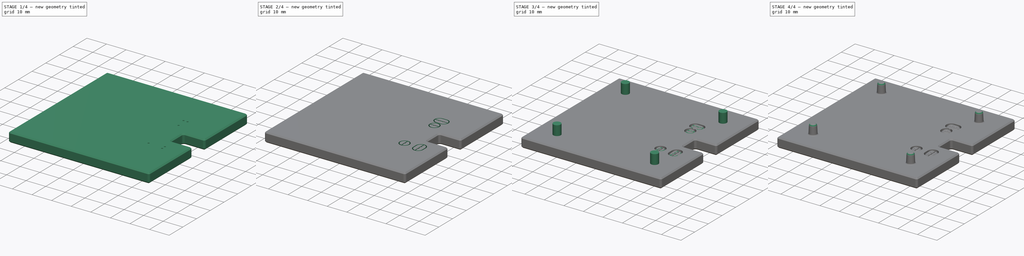
[diagram: build sequence overview — one tinted view per stage of 4, left to right]
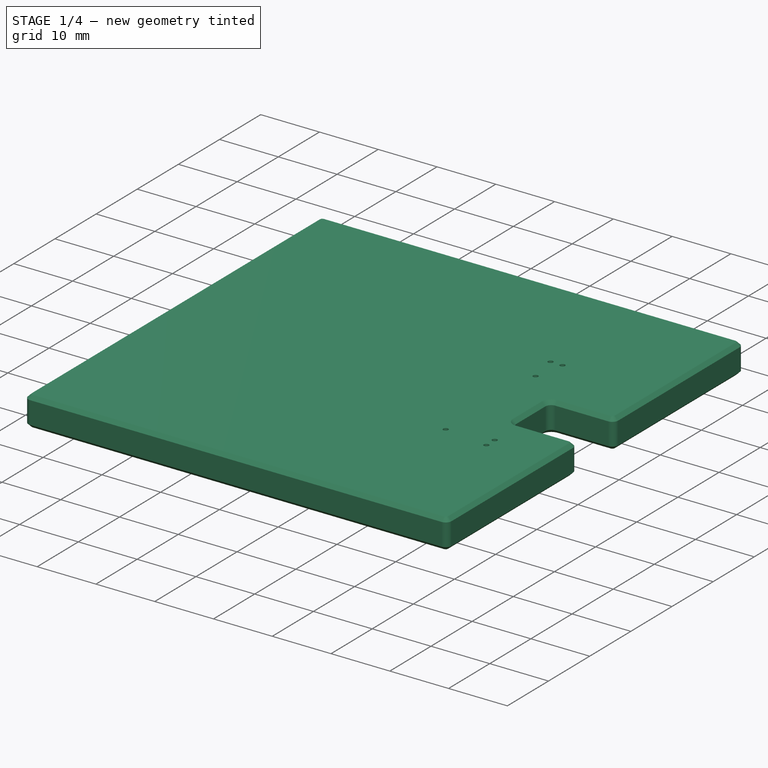
[diagram: stage 1 of 4 — iso view after this stage's code; geometry added in this stage tinted green]
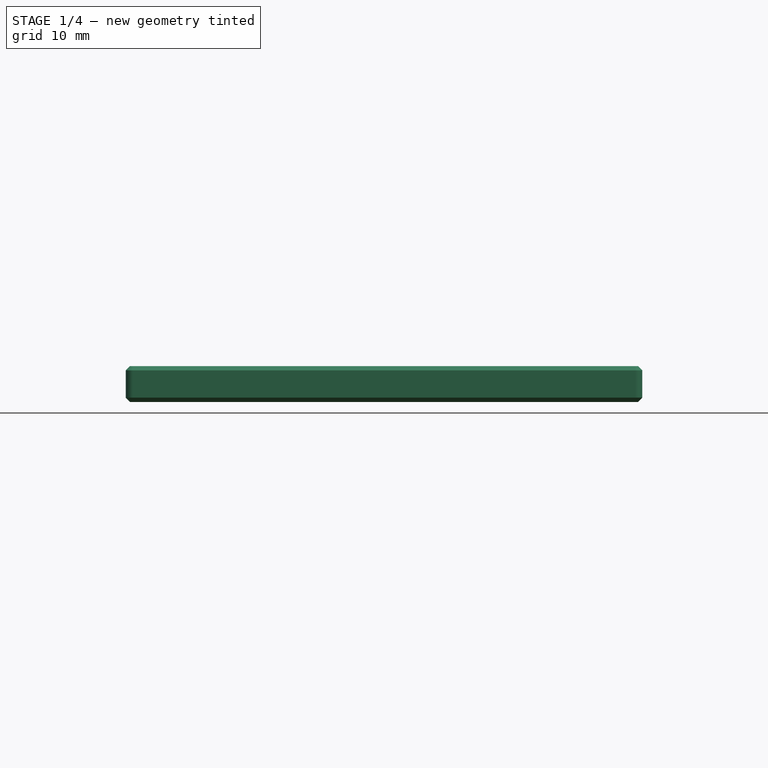
[diagram: stage 1 of 4 — front view after this stage's code; geometry added in this stage tinted green]
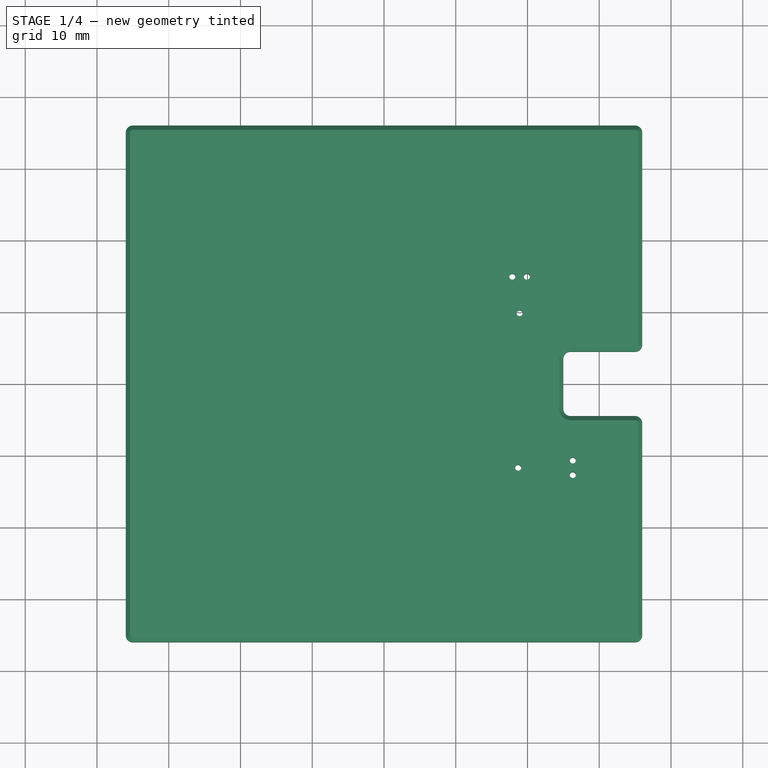
[diagram: stage 1 of 4 — top view after this stage's code; geometry added in this stage tinted green]
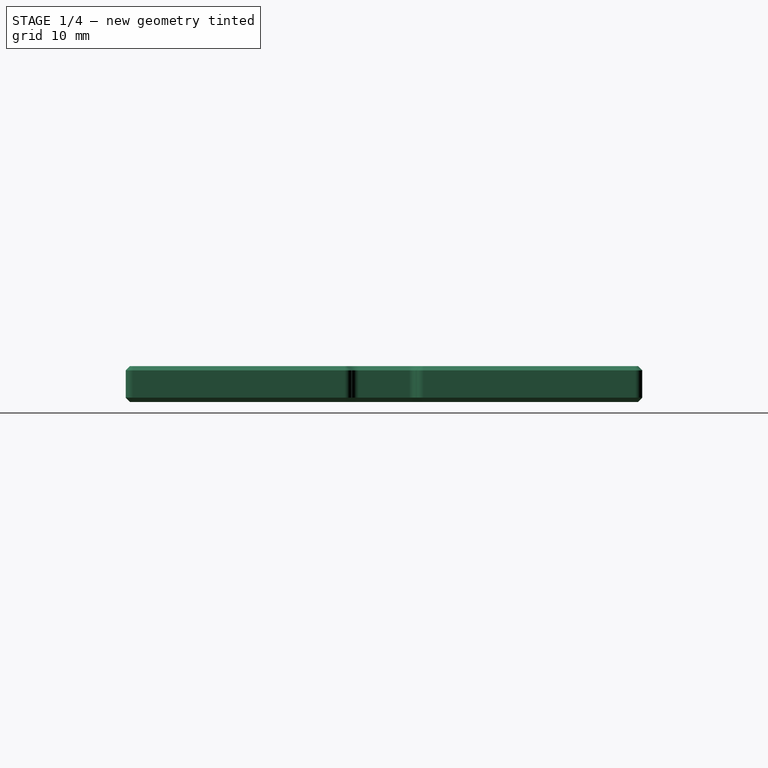
[diagram: stage 1 of 4 — right view after this stage's code; geometry added in this stage tinted green]
FCSTD DOCUMENT  (FreeCAD 1.0R39319 (Git))
Label: GTW08L_fixture
License: All rights reserved
LicenseURL: https://en.wikipedia.org/wiki/All_rights_reserved
objects: Sketcher::SketchObject×5, PartDesign::Fillet×5, PartDesign::Chamfer×4, PartDesign::Pad×2, PartDesign::Pocket×2, PartDesign::Body×1
note: 50 computed .brp shape members not serialized (recipe doc carries the construction recipe); baked Part::Feature solids carry a one-line shape summary decoded from their .brp

FEATURE [Sketcher::SketchObject] Sketch001  label="Template"
  ArcFitTolerance = 1e-06
  AttachmentSupport = -> [XY_Plane]
  FullyConstrained = true
  MakeInternals = false
  MapMode = 5
  sketch-geometry (57):
    g0: Circle CenterX=26.32 CenterY=-10.685 CenterZ=0 NormalX=0 NormalY=0 NormalZ=1 AngleXU=0 Radius=0.7
    g1: Circle CenterX=26.32 CenterY=-12.715 CenterZ=0 NormalX=0 NormalY=0 NormalZ=1 AngleXU=0 Radius=0.7
    g2: Circle CenterX=18.7 CenterY=-11.7 CenterZ=0 NormalX=0 NormalY=0 NormalZ=1 AngleXU=0 Radius=0.7
    g3: LineSegment [constr] StartX=26.32 StartY=-10.685 StartZ=0 EndX=26.32 EndY=-12.715 EndZ=0
    g4: LineSegment [constr] StartX=18.7 StartY=-11.7 StartZ=0 EndX=26.32 EndY=-11.7 EndZ=0
    g5: ArcOfCircle CenterX=26.32 CenterY=-10.685 CenterZ=0 NormalX=0 NormalY=0 NormalZ=1 AngleXU=0 Radius=2.1 StartAngle=1.1e-15 EndAngle=3.14159
    g6: ArcOfCircle CenterX=26.32 CenterY=-12.715 CenterZ=0 NormalX=0 NormalY=0 NormalZ=1 AngleXU=0 Radius=2.1 StartAngle=3.14159 EndAngle=6.28319
    g7: LineSegment StartX=28.42 StartY=-10.685 StartZ=0 EndX=28.42 EndY=-12.715 EndZ=0
    g8: LineSegment StartX=24.22 StartY=-10.685 StartZ=0 EndX=24.22 EndY=-12.715 EndZ=0
    g9: Circle CenterX=18.7 CenterY=-11.7 CenterZ=0 NormalX=0 NormalY=0 NormalZ=1 AngleXU=0 Radius=2.1
    g10: Circle CenterX=26.32 CenterY=-10.685 CenterZ=0 NormalX=0 NormalY=0 NormalZ=1 AngleXU=0 Radius=0.425
    g11: Circle CenterX=26.32 CenterY=-12.715 CenterZ=0 NormalX=0 NormalY=0 NormalZ=1 AngleXU=0 Radius=0.425
    g12: Circle CenterX=18.7 CenterY=-11.7 CenterZ=0 NormalX=0 NormalY=0 NormalZ=1 AngleXU=0 Radius=0.425
    g13: ArcOfCircle CenterX=26.32 CenterY=-10.685 CenterZ=0 NormalX=0 NormalY=0 NormalZ=1 AngleXU=0 Radius=2.55 StartAngle=-1.8e-15 EndAngle=3.14159
    g14: ArcOfCircle CenterX=26.32 CenterY=-12.715 CenterZ=0 NormalX=0 NormalY=0 NormalZ=1 AngleXU=0 Radius=2.55 StartAngle=3.14159 EndAngle=6.28319
    g15: LineSegment StartX=28.87 StartY=-10.685 StartZ=0 EndX=28.87 EndY=-12.715 EndZ=0
    g16: LineSegment StartX=23.77 StartY=-10.685 StartZ=0 EndX=23.77 EndY=-12.715 EndZ=0
    g17: Circle CenterX=18.7 CenterY=-11.7 CenterZ=0 NormalX=0 NormalY=0 NormalZ=1 AngleXU=0 Radius=2.55
    g18: LineSegment [constr] StartX=28.42 StartY=-10.685 StartZ=0 EndX=27.02 EndY=-10.685 EndZ=0
    g19: LineSegment [constr] StartX=-25 StartY=25 StartZ=0 EndX=-25 EndY=-25 EndZ=0
    g20: LineSegment [constr] StartX=-25 StartY=-25 StartZ=0 EndX=25 EndY=-25 EndZ=0
    g21: LineSegment [constr] StartX=25 StartY=25 StartZ=0 EndX=-25 EndY=25 EndZ=0
    g22: Circle CenterX=-25 CenterY=25 CenterZ=0 NormalX=0 NormalY=0 NormalZ=1 AngleXU=0 Radius=1.9
    g23: Circle CenterX=25 CenterY=25 CenterZ=0 NormalX=0 NormalY=0 NormalZ=1 AngleXU=0 Radius=1.9
    g24: Circle CenterX=25 CenterY=-25 CenterZ=0 NormalX=0 NormalY=0 NormalZ=1 AngleXU=0 Radius=1.9
    g25: Circle CenterX=-25 CenterY=-25 CenterZ=0 NormalX=0 NormalY=0 NormalZ=1 AngleXU=0 Radius=1.9
    g26: LineSegment StartX=-36 StartY=36 StartZ=0 EndX=-36 EndY=-36 EndZ=0
    g27: LineSegment StartX=-36 StartY=-36 StartZ=0 EndX=36 EndY=-36 EndZ=0
    g28: LineSegment StartX=36 StartY=-36 StartZ=0 EndX=36 EndY=36 EndZ=0
    g29: LineSegment StartX=36 StartY=36 StartZ=0 EndX=-36 EndY=36 EndZ=0
    g30: LineSegment [constr] StartX=-25 StartY=25 StartZ=0 EndX=-36 EndY=25 EndZ=0
    g31: LineSegment [constr] StartX=25 StartY=25 StartZ=0 EndX=25 EndY=36 EndZ=0
    g32: LineSegment [constr] StartX=25 StartY=-25 StartZ=0 EndX=36 EndY=-25 EndZ=0
    g33: LineSegment [constr] StartX=-25 StartY=-25 StartZ=0 EndX=-25 EndY=-36 EndZ=0
    g34: LineSegment StartX=36 StartY=4.5 StartZ=0 EndX=25 EndY=4.5 EndZ=0
    g35: LineSegment StartX=25 StartY=4.5 StartZ=0 EndX=25 EndY=-4.5 EndZ=0
    g36: LineSegment StartX=25 StartY=-4.5 StartZ=0 EndX=36 EndY=-4.5 EndZ=0
    g37: LineSegment [constr] StartX=25 StartY=4.5 StartZ=0 EndX=25 EndY=25 EndZ=0
    g38: LineSegment [constr] StartX=25 StartY=-25 StartZ=0 EndX=25 EndY=-4.5 EndZ=0
    g39: Circle CenterX=17.885 CenterY=14.93 CenterZ=0 NormalX=0 NormalY=0 NormalZ=1 AngleXU=0 Radius=0.425
    g40: Circle CenterX=19.915 CenterY=14.93 CenterZ=0 NormalX=0 NormalY=0 NormalZ=1 AngleXU=0 Radius=0.425
    g41: LineSegment [constr] StartX=17.885 StartY=14.93 StartZ=0 EndX=19.915 EndY=14.93 EndZ=0
    g42: LineSegment [constr] StartX=18.9 StartY=14.93 StartZ=0 EndX=18.9 EndY=9.85 EndZ=0
    g43: Circle CenterX=18.9 CenterY=9.85 CenterZ=0 NormalX=0 NormalY=0 NormalZ=1 AngleXU=0 Radius=0.425
    g44: Circle CenterX=19.915 CenterY=14.93 CenterZ=0 NormalX=0 NormalY=0 NormalZ=1 AngleXU=0 Radius=0.7
    g45: Circle CenterX=17.885 CenterY=14.93 CenterZ=0 NormalX=0 NormalY=0 NormalZ=1 AngleXU=0 Radius=0.7
    g46: Circle CenterX=18.9 CenterY=9.85 CenterZ=0 NormalX=0 NormalY=0 NormalZ=1 AngleXU=0 Radius=0.7
    g47: Circle CenterX=18.9 CenterY=9.85 CenterZ=0 NormalX=0 NormalY=0 NormalZ=1 AngleXU=0 Radius=2.1
    g48: Circle CenterX=18.9 CenterY=9.85 CenterZ=0 NormalX=0 NormalY=0 NormalZ=1 AngleXU=0 Radius=2.55
    g49: ArcOfCircle CenterX=17.885 CenterY=14.93 CenterZ=0 NormalX=0 NormalY=0 NormalZ=1 AngleXU=0 Radius=2.1 StartAngle=1.5708 EndAngle=4.71239
    g50: ArcOfCircle CenterX=19.915 CenterY=14.93 CenterZ=0 NormalX=0 NormalY=0 NormalZ=1 AngleXU=0 Radius=2.1 StartAngle=4.71239 EndAngle=7.85398
    g51: LineSegment StartX=17.885 StartY=17.03 StartZ=0 EndX=19.915 EndY=17.03 EndZ=0
    g52: LineSegment StartX=17.885 StartY=12.83 StartZ=0 EndX=19.915 EndY=12.83 EndZ=0
    g53: ArcOfCircle CenterX=17.885 CenterY=14.93 CenterZ=0 NormalX=0 NormalY=0 NormalZ=1 AngleXU=0 Radius=2.55 StartAngle=1.5708 EndAngle=4.71239
    g54: ArcOfCircle CenterX=19.915 CenterY=14.93 CenterZ=0 NormalX=0 NormalY=0 NormalZ=1 AngleXU=0 Radius=2.55 StartAngle=4.71239 EndAngle=7.85398
    g55: LineSegment StartX=17.885 StartY=17.48 StartZ=0 EndX=19.915 EndY=17.48 EndZ=0
    g56: LineSegment StartX=17.885 StartY=12.38 StartZ=0 EndX=19.915 EndY=12.38 EndZ=0
  constraints (136):
    c: Coincident(g3,g0)
    c: Coincident(g3,g1)
    c: Coincident(g4,g2)
    c: Symmetric(g3,g3,g4)
    c: Diameter(g2) = 1.4
    c: Equal(g0,g1)
    c: Equal(g1,g2)
    c: Tangent(g5,g7) = 1.5708
    c: Tangent(g5,g8) = -1.5708
    c: Tangent(g6,g7) = 1.5708
    c: Tangent(g6,g8) = -1.5708
    c: Equal(g5,g6)
    c: Coincident(g5,g0)
    c: Coincident(g6,g1)
    c: Equal(g5,g9)
    c: Coincident(g10,g0)
    c: Coincident(g11,g1)
    c: Coincident(g12,g9)
    c: Coincident(g9,g2)
    c: Diameter(g12) = 0.85
    c: Tangent(g13,g15) = 1.5708
    c: Tangent(g13,g16) = -1.5708
    c: Tangent(g14,g15) = 1.5708
    c: Tangent(g14,g16) = -1.5708
    c: Equal(g13,g14)
    c: Coincident(g17,g2)
    c: Equal(g17,g14)
    c: Coincident(g1,g14)
    c: Coincident(g13,g0)
    c: Equal(g12,g11)
    c: Equal(g11,g10)
    c: Coincident(g18,g5)
    c: PointOnObject(g18,g0)
    c: Vertical(g3)
    c: Horizontal(g4)
    c: DistanceX(g2,g0) = 7.62
    c: DistanceY(g3,g3) = 2.03
    c: DistanceX(g18,g18) = 1.4
    c: DistanceX(g5,g13) = 0.45
    c: Horizontal(g18)
    c: Coincident(g19,g20)
    c: Coincident(g20,g38)
    c: Coincident(g37,g21)
    c: Coincident(g21,g19)
    c: Vertical(g19)
    c: Horizontal(g20)
    c: Horizontal(g21)
    c: Equal(g21,g19)
    c: DistanceX(g21,g21) = 50
    c: Symmetric(g37,g19,g-1)  '__ANCHOR__'
    c: Coincident(g22,g19)
    c: Coincident(g23,g37)
    c: Coincident(g24,g20)
    c: Coincident(g25,g19)
    c: Equal(g22,g23)
    c: Equal(g23,g24)
    c: Equal(g24,g25)
    c: Diameter(g22) = 3.8
    c: DistanceY(g20,g2) = 13.3
    c: DistanceX(g2,g20) = 6.3
    c: Coincident(g26,g27)
    c: Coincident(g27,g28)
    c: Coincident(g28,g29)
    c: Coincident(g29,g26)
    c: Vertical(g26)
    c: Vertical(g28)
    c: Horizontal(g27)
    c: Horizontal(g29)
    c: Equal(g29,g26)
    c: DistanceX(g29,g29) = 72
    c: Coincident(g30,g19)
    c: PointOnObject(g30,g26)
    c: Horizontal(g30)
    c: Coincident(g31,g37)
    c: PointOnObject(g31,g29)
    c: Vertical(g31)
    c: Coincident(g32,g20)
    c: PointOnObject(g32,g28)
    c: Horizontal(g32)
    c: Coincident(g33,g19)
    c: PointOnObject(g33,g27)
    c: Vertical(g33)
    c: Equal(g30,g31)
    c: Equal(g31,g32)
    c: PointOnObject(g34,g28)
    c: Horizontal(g34)
    c: Coincident(g34,g35)
    c: Coincident(g35,g36)
    c: PointOnObject(g36,g28)
    c: Horizontal(g36)
    c: Vertical(g35)
    c: Vertical(g37)
    c: Vertical(g38)
    c: Coincident(g34,g37)
    c: Coincident(g35,g38)
    c: Equal(g38,g37)
    c: DistanceY(g36,g34) = 9
    c: Coincident(g41,g39)
    c: Coincident(g41,g40)
    c: Horizontal(g41)
    c: Equal(g10,g40)
    c: Equal(g40,g39)
    c: Equal(g3,g41)
    c: Symmetric(g41,g41,g42)
    c: Vertical(g42)
    c: DistanceY(g42,g39) = 5.08
    c: Coincident(g43,g42)
    c: Equal(g39,g43)
    c: Coincident(g44,g40)
    c: Coincident(g45,g39)
    c: Coincident(g46,g42)
    c: Equal(g0,g44)
    c: Equal(g44,g45)
    c: Equal(g45,g46)
    c: Coincident(g47,g42)
    c: Coincident(g48,g42)
    c: Tangent(g49,g51) = 1.5708
    c: Tangent(g49,g52) = -1.5708
    c: Tangent(g50,g51) = 1.5708
    c: Tangent(g50,g52) = -1.5708
    c: Equal(g49,g50)
    c: Equal(g9,g47)
    c: Equal(g47,g50)
    c: Equal(g17,g48)
    c: Coincident(g50,g40)
    c: Coincident(g39,g49)
    c: Tangent(g53,g55) = 1.5708
    c: Tangent(g53,g56) = -1.5708
    c: Tangent(g54,g55) = 1.5708
    c: Tangent(g54,g56) = -1.5708
    c: Equal(g53,g54)
    c: Coincident(g53,g39)
    c: Coincident(g54,g40)
    c: Equal(g48,g54)
    c: DistanceX(g42,g21) = 6.1
    c: DistanceY(g42,g21) = 15.15
FEATURE [Sketcher::SketchObject] Sketch  label="Base"
  ArcFitTolerance = 1e-06
  AttachmentSupport = -> [XY_Plane]
  ExternalGeometry = -> [Sketch001]
  FullyConstrained = true
  MakeInternals = false
  MapMode = 5
  sketch-geometry (14):
    g0: LineSegment StartX=-36 StartY=36 StartZ=0 EndX=36 EndY=36 EndZ=0
    g1: LineSegment StartX=36 StartY=36 StartZ=0 EndX=36 EndY=4.5 EndZ=0
    g2: LineSegment StartX=36 StartY=4.5 StartZ=0 EndX=25 EndY=4.5 EndZ=0
    g3: LineSegment StartX=25 StartY=4.5 StartZ=0 EndX=25 EndY=-4.5 EndZ=0
    g4: LineSegment StartX=25 StartY=-4.5 StartZ=0 EndX=36 EndY=-4.5 EndZ=0
    g5: LineSegment StartX=36 StartY=-4.5 StartZ=0 EndX=36 EndY=-36 EndZ=0
    g6: LineSegment StartX=36 StartY=-36 StartZ=0 EndX=-36 EndY=-36 EndZ=0
    g7: LineSegment StartX=-36 StartY=-36 StartZ=0 EndX=-36 EndY=36 EndZ=0
    g8: Circle CenterX=18.7 CenterY=-11.7 CenterZ=0 NormalX=0 NormalY=0 NormalZ=1 AngleXU=0 Radius=0.425
    g9: Circle CenterX=26.32 CenterY=-10.685 CenterZ=0 NormalX=0 NormalY=0 NormalZ=1 AngleXU=0 Radius=0.425
    g10: Circle CenterX=26.32 CenterY=-12.715 CenterZ=0 NormalX=0 NormalY=0 NormalZ=1 AngleXU=0 Radius=0.425
    g11: Circle CenterX=17.885 CenterY=14.93 CenterZ=0 NormalX=0 NormalY=0 NormalZ=1 AngleXU=0 Radius=0.425
    g12: Circle CenterX=19.915 CenterY=14.93 CenterZ=0 NormalX=0 NormalY=0 NormalZ=1 AngleXU=0 Radius=0.425
    g13: Circle CenterX=18.9 CenterY=9.85 CenterZ=0 NormalX=0 NormalY=0 NormalZ=1 AngleXU=0 Radius=0.425
  constraints (28):
    c: Coincident(g-3,g0)
    c: Coincident(g0,g-3)
    c: Coincident(g0,g1)
    c: Coincident(g1,g-9)
    c: Coincident(g1,g2)
    c: Coincident(g2,g-9)
    c: Coincident(g2,g3)
    c: Coincident(g3,g-8)
    c: Coincident(g3,g4)
    c: Coincident(g4,g-8)
    c: Coincident(g4,g5)
    c: Coincident(g5,g-4)
    c: Coincident(g5,g6)
    c: Coincident(g6,g-4)
    c: Coincident(g6,g7)
    c: Coincident(g7,g0)
    c: Coincident(g8,g-7)
    c: Equal(g8,g-7)
    c: Coincident(g9,g-6)
    c: Equal(g9,g-6)
    c: Coincident(g10,g-5)
    c: Equal(g10,g-5)
    c: Coincident(g11,g-10)
    c: Equal(g11,g-10)
    c: Coincident(g12,g-11)
    c: Equal(g12,g-11)
    c: Coincident(g13,g-12)
    c: Equal(g13,g-12)
FEATURE [PartDesign::Pad] Pad
  Direction = (0,0,1)
  Length = 5
  Length2 = 10
  Profile = -> Sketch
  ReferenceAxis = -> Sketch [N_Axis]
  Refine = true
  Suppressed = false
  Type = 0
FEATURE [PartDesign::Fillet] Fillet
  Base = -> Pad [Edge8,Edge5,Edge2,Edge14,Edge17,Edge20,Edge11,Edge1]
  BaseFeature = -> Pad
  Radius = 1
  Refine = true
  SupportTransform = false
  Suppressed = false
  UseAllEdges = false
FEATURE [Sketcher::SketchObject] Sketch002
  ArcFitTolerance = 1e-06
  AttachmentOffset = pos=(0,0,3) rot=(0,0,1;0rad)
  AttachmentSupport = -> [XY_Plane]
  ExternalGeometry = -> [Sketch001]
  FullyConstrained = true
  MakeInternals = false
  MapMode = 5
  Placement = pos=(0,0,3) rot=(0,0,1;0rad)
  expr: .AttachmentOffset.Base.z = <<Pad>>.Length - 2 mm
  sketch-geometry (10):
    g0: ArcOfCircle CenterX=26.32 CenterY=-10.685 CenterZ=0 NormalX=0 NormalY=0 NormalZ=1 AngleXU=0 Radius=0.7 StartAngle=0 EndAngle=3.14159
    g1: ArcOfCircle CenterX=26.32 CenterY=-12.715 CenterZ=0 NormalX=0 NormalY=0 NormalZ=1 AngleXU=0 Radius=0.7 StartAngle=3.14161 EndAngle=6.28317
    g2: LineSegment StartX=27.02 StartY=-10.685 StartZ=0 EndX=27.02 EndY=-12.715 EndZ=0
    g3: LineSegment StartX=25.62 StartY=-10.685 StartZ=0 EndX=25.62 EndY=-12.715 EndZ=0
    g4: Circle CenterX=18.7 CenterY=-11.7 CenterZ=0 NormalX=0 NormalY=0 NormalZ=1 AngleXU=0 Radius=0.7
    g5: ArcOfCircle CenterX=17.885 CenterY=14.93 CenterZ=0 NormalX=0 NormalY=0 NormalZ=1 AngleXU=0 Radius=0.7 StartAngle=1.5708 EndAngle=4.71239
    g6: ArcOfCircle CenterX=19.915 CenterY=14.93 CenterZ=0 NormalX=0 NormalY=0 NormalZ=1 AngleXU=0 Radius=0.7 StartAngle=4.71239 EndAngle=7.85398
    g7: LineSegment StartX=17.885 StartY=15.63 StartZ=0 EndX=19.915 EndY=15.63 EndZ=0
    g8: LineSegment StartX=17.885 StartY=14.23 StartZ=0 EndX=19.915 EndY=14.23 EndZ=0
    g9: Circle CenterX=18.9 CenterY=9.85 CenterZ=0 NormalX=0 NormalY=0 NormalZ=1 AngleXU=0 Radius=0.7
  constraints (22):
    c: Equal(g0,g1)
    c: Coincident(g1,g-5)
    c: Equal(g1,g-5)
    c: Coincident(g0,g-4)
    c: Coincident(g1,g3)
    c: Coincident(g1,g2)
    c: Vertical(g2)
    c: Tangent(g0,g3) = -1.5708
    c: Tangent(g0,g2) = 1.5708
    c: Vertical(g3)
    c: Coincident(g4,g-3)
    c: Equal(g4,g-3)
    c: Tangent(g5,g7) = 1.5708
    c: Tangent(g5,g8) = -1.5708
    c: Tangent(g6,g7) = 1.5708
    c: Tangent(g6,g8) = -1.5708
    c: Equal(g5,g6)
    c: Coincident(g6,g-8)
    c: Coincident(g5,g-6)
    c: Equal(g5,g-6)
    c: Coincident(g9,g-7)
    c: Equal(g9,g-7)
FEATURE [Sketcher::SketchObject] Sketch003
  ArcFitTolerance = 1e-06
  AttachmentOffset = pos=(0,0,5) rot=(0,0,1;0rad)
  AttachmentSupport = -> [XY_Plane]
  ExternalGeometry = -> [Sketch001]
  FullyConstrained = true
  MakeInternals = false
  MapMode = 5
  Placement = pos=(0,0,5) rot=(0,0,1;0rad)
  expr: .AttachmentOffset.Base.z = <<Pad>>.Length
  sketch-geometry (43):
    g0: Circle CenterX=18.7 CenterY=-11.7 CenterZ=0 NormalX=0 NormalY=0 NormalZ=1 AngleXU=0 Radius=2.55
    g1: ArcOfCircle CenterX=18.7 CenterY=-11.7 CenterZ=0 NormalX=0 NormalY=0 NormalZ=1 AngleXU=0 Radius=2.1 StartAngle=1.67216 EndAngle=4.61103
    g2: ArcOfCircle CenterX=18.7 CenterY=-11.7 CenterZ=0 NormalX=0 NormalY=0 NormalZ=1 AngleXU=0 Radius=2.1 StartAngle=4.81375 EndAngle=7.75262
    g3: LineSegment StartX=18.4875 StartY=-9.61078 StartZ=0 EndX=18.4875 EndY=-13.7892 EndZ=0
    g4: LineSegment StartX=18.9125 StartY=-9.61078 StartZ=0 EndX=18.9125 EndY=-13.7892 EndZ=0
    g5: LineSegment [constr] StartX=18.7 StartY=-11.7 StartZ=0 EndX=18.4875 EndY=-11.7 EndZ=0
    g6: LineSegment [constr] StartX=18.4875 StartY=-11.7 StartZ=0 EndX=18.275 EndY=-11.7 EndZ=0
    g7: LineSegment [constr] StartX=18.7 StartY=-11.7 StartZ=0 EndX=18.9125 EndY=-11.7 EndZ=0
    g8: LineSegment StartX=24.22 StartY=-10.685 StartZ=0 EndX=24.22 EndY=-12.715 EndZ=0
    g9: LineSegment StartX=28.42 StartY=-10.685 StartZ=0 EndX=28.42 EndY=-12.715 EndZ=0
    g10: LineSegment [constr] StartX=26.32 StartY=-10.685 StartZ=0 EndX=26.1075 EndY=-10.685 EndZ=0
    g11: LineSegment [constr] StartX=26.32 StartY=-10.685 StartZ=0 EndX=26.5325 EndY=-10.685 EndZ=0
    g12: LineSegment StartX=26.1075 StartY=-8.59578 StartZ=0 EndX=26.1075 EndY=-14.8042 EndZ=0
    g13: LineSegment StartX=26.5325 StartY=-14.8042 StartZ=0 EndX=26.5325 EndY=-8.59578 EndZ=0
    g14: ArcOfCircle CenterX=26.32 CenterY=-10.685 CenterZ=0 NormalX=0 NormalY=0 NormalZ=1 AngleXU=0 Radius=2.1 StartAngle=1.67216 EndAngle=3.14159
    g15: ArcOfCircle CenterX=26.32 CenterY=-10.685 CenterZ=0 NormalX=0 NormalY=0 NormalZ=1 AngleXU=0 Radius=2.1 StartAngle=5e-16 EndAngle=1.46943
    g16: ArcOfCircle CenterX=26.32 CenterY=-12.715 CenterZ=0 NormalX=0 NormalY=0 NormalZ=1 AngleXU=0 Radius=2.1 StartAngle=3.14159 EndAngle=4.61103
    g17: ArcOfCircle CenterX=26.32 CenterY=-12.715 CenterZ=0 NormalX=0 NormalY=0 NormalZ=1 AngleXU=0 Radius=2.1 StartAngle=4.81375 EndAngle=6.28319
    g18: ArcOfCircle CenterX=26.32 CenterY=-10.685 CenterZ=0 NormalX=0 NormalY=0 NormalZ=1 AngleXU=0 Radius=2.55 StartAngle=2e-16 EndAngle=3.14159
    g19: ArcOfCircle CenterX=26.32 CenterY=-12.715 CenterZ=0 NormalX=0 NormalY=0 NormalZ=1 AngleXU=0 Radius=2.55 StartAngle=3.14159 EndAngle=6.28319
    g20: LineSegment StartX=28.87 StartY=-10.685 StartZ=0 EndX=28.87 EndY=-12.715 EndZ=0
    g21: LineSegment StartX=23.77 StartY=-10.685 StartZ=0 EndX=23.77 EndY=-12.715 EndZ=0
    g22: ArcOfCircle CenterX=17.885 CenterY=14.93 CenterZ=0 NormalX=0 NormalY=0 NormalZ=1 AngleXU=0 Radius=2.55 StartAngle=1.5708 EndAngle=4.71239
    g23: ArcOfCircle CenterX=19.915 CenterY=14.93 CenterZ=0 NormalX=0 NormalY=0 NormalZ=1 AngleXU=0 Radius=2.55 StartAngle=4.71239 EndAngle=7.85398
    g24: LineSegment StartX=17.885 StartY=17.48 StartZ=0 EndX=19.915 EndY=17.48 EndZ=0
    g25: LineSegment StartX=17.885 StartY=12.38 StartZ=0 EndX=19.915 EndY=12.38 EndZ=0
    g26: Circle CenterX=18.9 CenterY=9.85 CenterZ=0 NormalX=0 NormalY=0 NormalZ=1 AngleXU=0 Radius=2.55
    g27: LineSegment StartX=20.9892 StartY=10.0625 StartZ=0 EndX=16.8108 EndY=10.0625 EndZ=0
    g28: LineSegment StartX=20.9892 StartY=9.6375 StartZ=0 EndX=16.8108 EndY=9.6375 EndZ=0
    g29: LineSegment [constr] StartX=18.9 StartY=9.85 StartZ=0 EndX=18.9 EndY=10.0625 EndZ=0
    g30: LineSegment [constr] StartX=18.9 StartY=9.85 StartZ=0 EndX=18.9 EndY=9.6375 EndZ=0
    g31: ArcOfCircle CenterX=18.9 CenterY=9.85 CenterZ=0 NormalX=0 NormalY=0 NormalZ=1 AngleXU=0 Radius=2.1 StartAngle=0.101364 EndAngle=3.04023
    g32: ArcOfCircle CenterX=18.9 CenterY=9.85 CenterZ=0 NormalX=0 NormalY=0 NormalZ=1 AngleXU=0 Radius=2.1 StartAngle=3.24296 EndAngle=6.18182
    g33: LineSegment StartX=15.7958 StartY=15.1425 StartZ=0 EndX=22.0042 EndY=15.1425 EndZ=0
    g34: LineSegment StartX=15.7958 StartY=14.7175 StartZ=0 EndX=22.0042 EndY=14.7175 EndZ=0
    g35: LineSegment [constr] StartX=17.885 StartY=14.93 StartZ=0 EndX=17.885 EndY=14.7175 EndZ=0
    g36: LineSegment [constr] StartX=17.885 StartY=14.93 StartZ=0 EndX=17.885 EndY=15.1425 EndZ=0
    g37: LineSegment StartX=17.885 StartY=12.83 StartZ=0 EndX=19.915 EndY=12.83 EndZ=0
    g38: LineSegment StartX=17.885 StartY=17.03 StartZ=0 EndX=19.915 EndY=17.03 EndZ=0
    g39: ArcOfCircle CenterX=17.885 CenterY=14.93 CenterZ=0 NormalX=0 NormalY=0 NormalZ=1 AngleXU=0 Radius=2.1 StartAngle=1.5708 EndAngle=3.04023
    g40: ArcOfCircle CenterX=19.915 CenterY=14.93 CenterZ=0 NormalX=0 NormalY=0 NormalZ=1 AngleXU=0 Radius=2.1 StartAngle=0.101364 EndAngle=1.5708
    g41: ArcOfCircle CenterX=17.885 CenterY=14.93 CenterZ=0 NormalX=0 NormalY=0 NormalZ=1 AngleXU=0 Radius=2.1 StartAngle=3.24296 EndAngle=4.71239
    g42: ArcOfCircle CenterX=19.915 CenterY=14.93 CenterZ=0 NormalX=0 NormalY=0 NormalZ=1 AngleXU=0 Radius=2.1 StartAngle=4.71239 EndAngle=6.18182
  constraints (121):
    c: Coincident(g0,g-4)
    c: Equal(g0,g-3)
    c: Coincident(g1,g0)
    c: PointOnObject(g1,g-4)
    c: Coincident(g2,g0)
    c: PointOnObject(g2,g-4)
    c: Coincident(g3,g1)
    c: Coincident(g3,g1)
    c: Vertical(g3)
    c: Coincident(g4,g2)
    c: Coincident(g4,g2)
    c: Vertical(g4)
    c: Coincident(g5,g0)
    c: Symmetric(g3,g3,g5)
    c: Coincident(g6,g5)
    c: PointOnObject(g6,g-7)
    c: Horizontal(g6)
    c: Coincident(g7,g0)
    c: Symmetric(g4,g4,g7)
    c: Equal(g7,g5)
    c: Equal(g5,g6)
    c: Coincident(g8,g-5)
    c: Coincident(g8,g-9)
    c: Coincident(g9,g-5)
    c: Coincident(g9,g-9)
    c: Horizontal(g10)
    c: Horizontal(g11)
    c: Equal(g7,g10)
    c: Equal(g10,g11)
    c: PointOnObject(g12,g-5)
    c: PointOnObject(g12,g-9)
    c: Vertical(g12)
    c: PointOnObject(g13,g-9)
    c: PointOnObject(g13,g-5)
    c: Vertical(g13)
    c: PointOnObject(g11,g13)
    c: PointOnObject(g10,g12)
    c: Coincident(g14,g8)
    c: PointOnObject(g14,g12)
    c: Coincident(g15,g9)
    c: PointOnObject(g15,g13)
    c: Coincident(g16,g8)
    c: PointOnObject(g16,g12)
    c: Coincident(g17,g9)
    c: PointOnObject(g17,g13)
    c: Coincident(g10,g11)
    c: Coincident(g10,g14)
    c: Coincident(g10,g15)
    c: Coincident(g10,g-6)
    c: Coincident(g16,g17)
    c: Coincident(g16,g-9)
    c: Tangent(g18,g20) = 1.5708
    c: Tangent(g18,g21) = -1.5708
    c: Tangent(g19,g20) = 1.5708
    c: Tangent(g19,g21) = -1.5708
    c: Equal(g18,g19)
    c: Coincident(g19,g16)
    c: Equal(g18,g-6)
    c: Coincident(g10,g18)
    c: Tangent(g22,g24) = 1.5708
    c: Tangent(g22,g25) = -1.5708
    c: Tangent(g23,g24) = 1.5708
    c: Tangent(g23,g25) = -1.5708
    c: Equal(g22,g23)
    c: Coincident(g23,g-13)
    c: Coincident(g22,g-11)
    c: Equal(g23,g-12)
    c: Coincident(g26,g-15)
    c: Equal(g26,g-14)
    c: PointOnObject(g27,g-15)
    c: PointOnObject(g27,g-15)
    c: PointOnObject(g28,g-15)
    c: PointOnObject(g28,g-15)
    c: Coincident(g29,g26)
    c: Coincident(g30,g26)
    c: Equal(g11,g30)
    c: Equal(g30,g29)
    c: PointOnObject(g29,g27)
    c: PointOnObject(g30,g28)
    c: Coincident(g31,g26)
    c: Coincident(g31,g27)
    c: PointOnObject(g31,g27)
    c: Coincident(g32,g26)
    c: Coincident(g32,g28)
    c: PointOnObject(g32,g28)
    c: Vertical(g29)
    c: Horizontal(g27)
    c: Vertical(g30)
    c: Horizontal(g28)
    c: PointOnObject(g33,g-11)
    c: PointOnObject(g33,g-13)
    c: Horizontal(g33)
    c: PointOnObject(g34,g-11)
    c: PointOnObject(g34,g-13)
    c: Horizontal(g34)
    c: Coincident(g35,g22)
    c: PointOnObject(g35,g34)
    c: Vertical(g35)
    c: Coincident(g36,g22)
    c: PointOnObject(g36,g33)
    c: Vertical(g36)
    c: Equal(g29,g35)
    c: Equal(g35,g36)
    c: Coincident(g37,g-11)
    c: Coincident(g37,g-13)
    c: Coincident(g38,g-11)
    c: Coincident(g38,g-13)
    c: Coincident(g39,g22)
    c: Coincident(g39,g38)
    c: PointOnObject(g39,g33)
    c: Coincident(g40,g23)
    c: Coincident(g40,g38)
    c: PointOnObject(g40,g33)
    c: Coincident(g41,g22)
    c: Coincident(g41,g37)
    c: PointOnObject(g41,g34)
    c: Coincident(g42,g23)
    c: Coincident(g42,g37)
    c: PointOnObject(g42,g34)
    c: DistanceX(g1,g2) = 0.425
    c: DistanceY(g34,g33) = 0.425  'Gap'
FEATURE [Sketcher::SketchObject] Sketch004
  ArcFitTolerance = 1e-06
  AttachmentOffset = pos=(0,0,5) rot=(0,0,1;0rad)
  AttachmentSupport = -> [XY_Plane]
  ExternalGeometry = -> [Sketch001]
  FullyConstrained = true
  MakeInternals = false
  MapMode = 5
  Placement = pos=(0,0,5) rot=(0,0,1;0rad)
  expr: .AttachmentOffset.Base.z = <<Pad>>.Length
  sketch-geometry (4):
    g0: Circle CenterX=-25 CenterY=25 CenterZ=0 NormalX=0 NormalY=0 NormalZ=1 AngleXU=0 Radius=1.9
    g1: Circle CenterX=25 CenterY=25 CenterZ=0 NormalX=0 NormalY=0 NormalZ=1 AngleXU=0 Radius=1.9
    g2: Circle CenterX=25 CenterY=-25 CenterZ=0 NormalX=0 NormalY=0 NormalZ=1 AngleXU=0 Radius=1.9
    g3: Circle CenterX=-25 CenterY=-25 CenterZ=0 NormalX=0 NormalY=0 NormalZ=1 AngleXU=0 Radius=1.9
  constraints (8):
    c: Coincident(g0,g-5)
    c: Equal(g0,g-5)
    c: Coincident(g1,g-6)
    c: Equal(g1,g-6)
    c: Coincident(g2,g-3)
    c: Equal(g2,g-3)
    c: Coincident(g3,g-4)
    c: Equal(g3,g-4)
FEATURE [PartDesign::Chamfer] Chamfer003
  Angle = 45
  Base = -> Fillet [Edge30,Edge7]
  BaseFeature = -> Fillet
  ChamferType = 0
  FlipDirection = false
  Refine = true
  Size = 0.6
  Size2 = 1
  SupportTransform = false
  Suppressed = false
  UseAllEdges = false
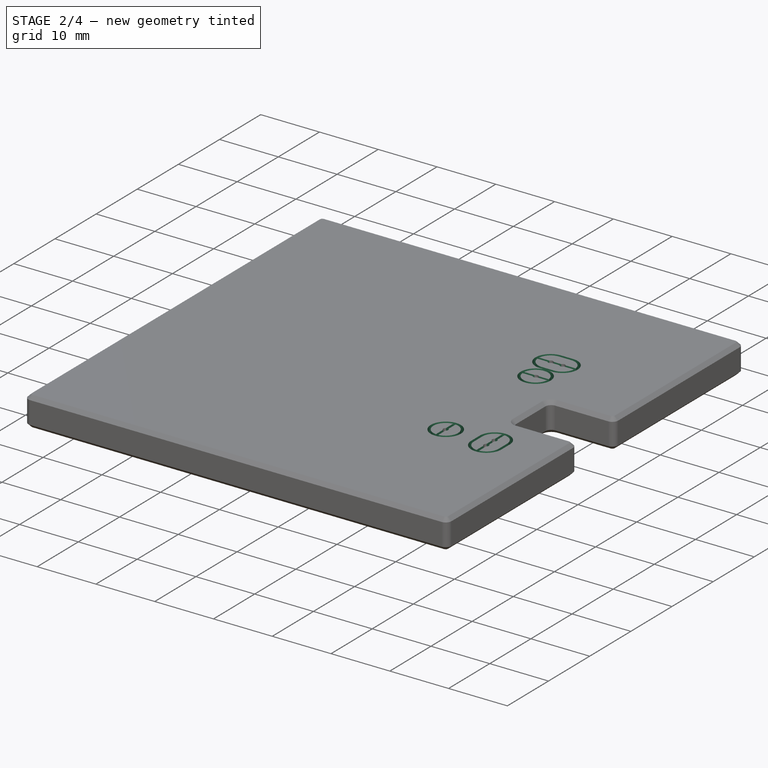
[diagram: stage 2 of 4 — iso view after this stage's code; geometry added in this stage tinted green]
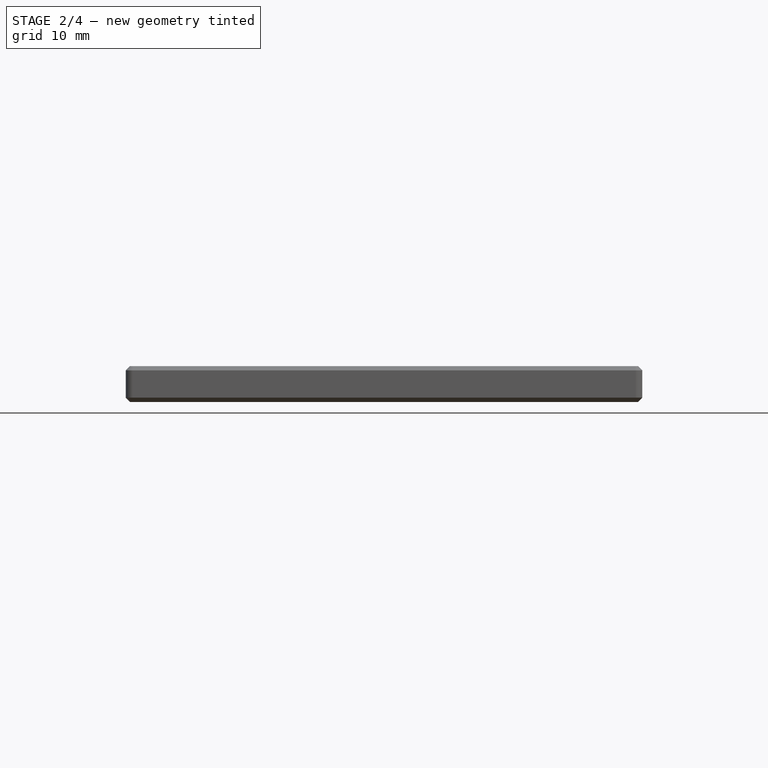
[diagram: stage 2 of 4 — front view after this stage's code; geometry added in this stage tinted green]
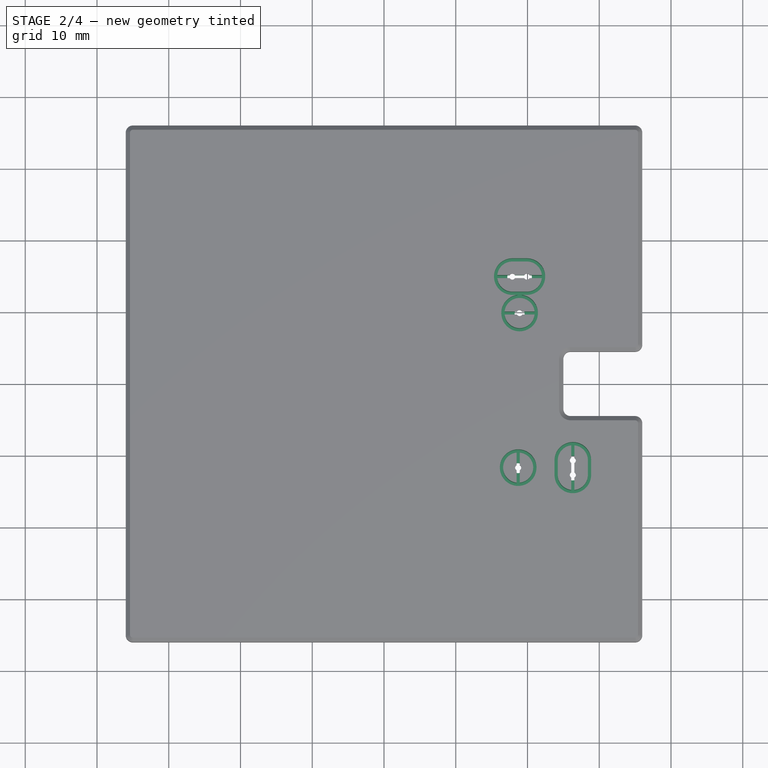
[diagram: stage 2 of 4 — top view after this stage's code; geometry added in this stage tinted green]
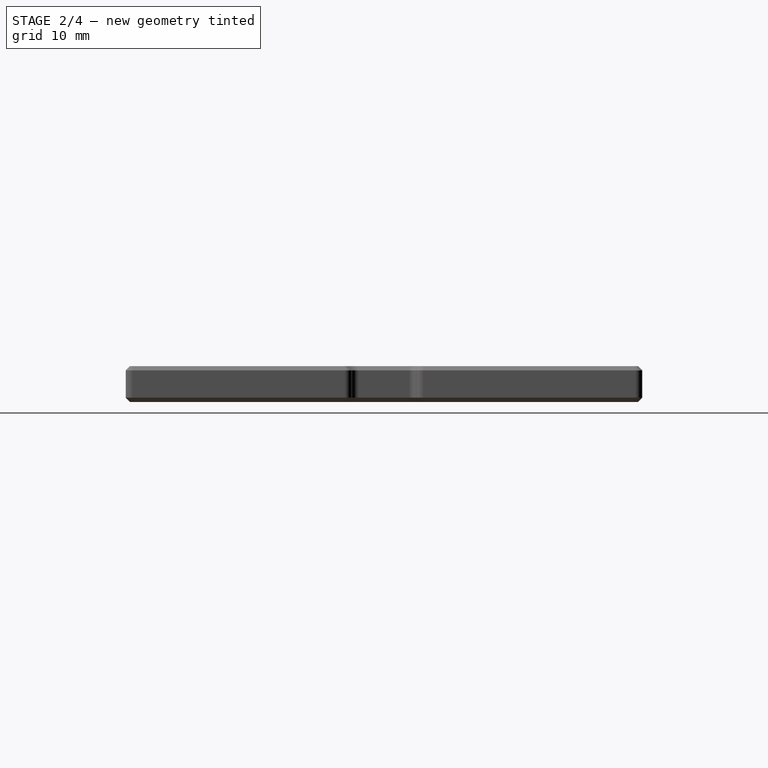
[diagram: stage 2 of 4 — right view after this stage's code; geometry added in this stage tinted green]
FEATURE [PartDesign::Pocket] Pocket
  BaseFeature = -> Chamfer003
  Direction = (0,0,-1)
  Length = 5
  Length2 = 5
  Profile = -> Sketch002
  ReferenceAxis = -> Sketch002 [N_Axis]
  Refine = true
  Suppressed = false
  Type = 1
FEATURE [PartDesign::Chamfer] Chamfer001
  Angle = 45
  Base = -> Pocket [Edge99,Edge101,Edge109,Edge116]
  BaseFeature = -> Pocket
  ChamferType = 0
  FlipDirection = false
  Refine = true
  Size = 0.27
  Size2 = 1
  SupportTransform = false
  Suppressed = false
  UseAllEdges = false
FEATURE [PartDesign::Pocket] Pocket001
  BaseFeature = -> Chamfer001
  Direction = (0,0,-1)
  Length = 4
  Length2 = 5
  Profile = -> Sketch003
  ReferenceAxis = -> Sketch003 [N_Axis]
  Refine = true
  Suppressed = false
  Type = 0
  expr: Length = <<Pad>>.Length - 1 mm
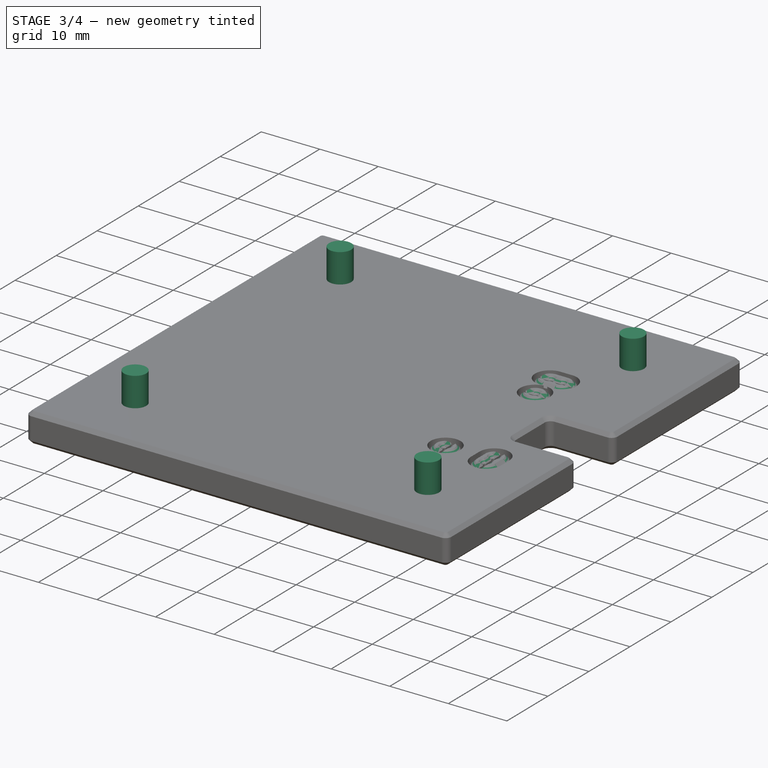
[diagram: stage 3 of 4 — iso view after this stage's code; geometry added in this stage tinted green]
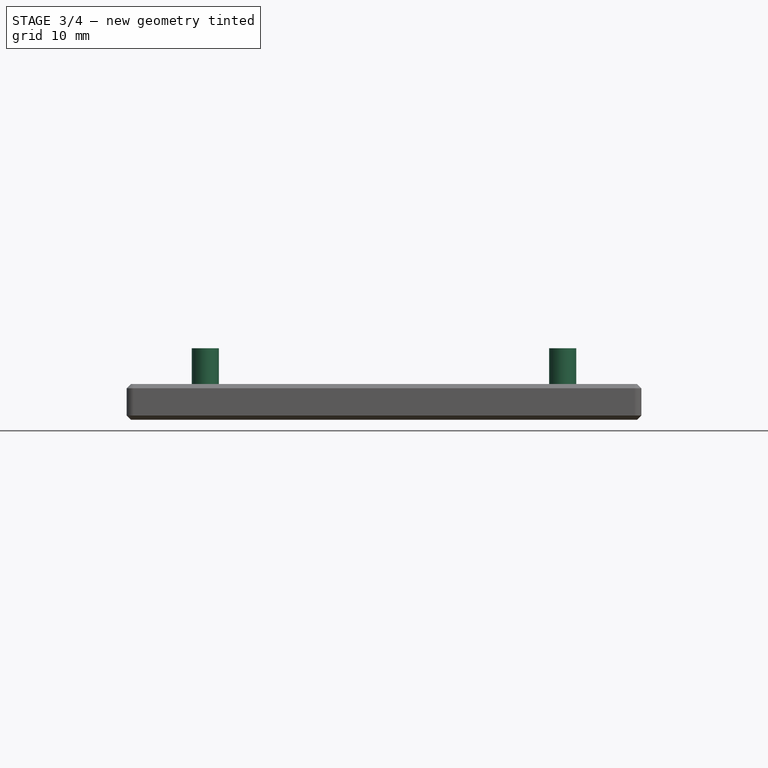
[diagram: stage 3 of 4 — front view after this stage's code; geometry added in this stage tinted green]
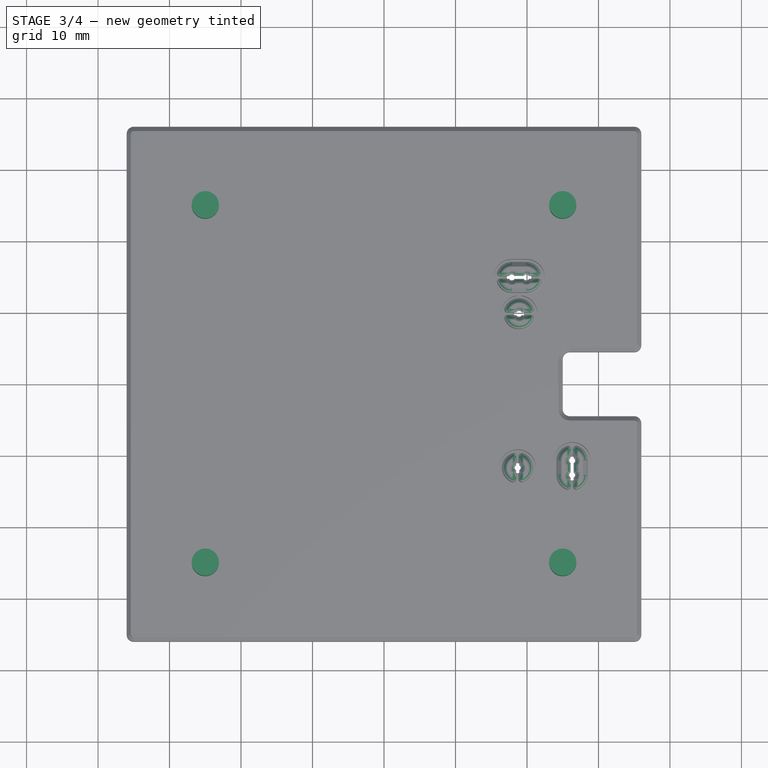
[diagram: stage 3 of 4 — top view after this stage's code; geometry added in this stage tinted green]
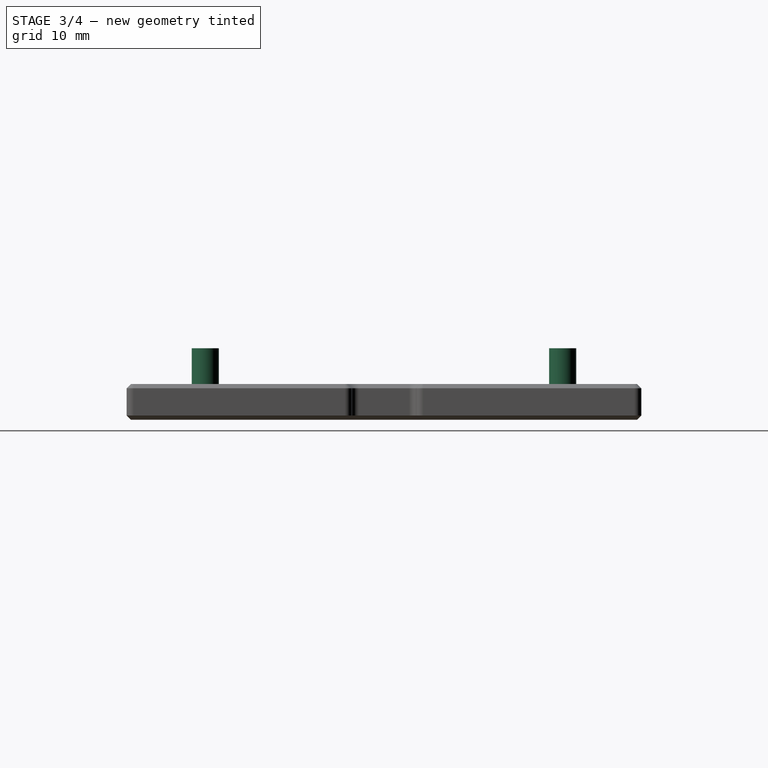
[diagram: stage 3 of 4 — right view after this stage's code; geometry added in this stage tinted green]
FEATURE [PartDesign::Chamfer] Chamfer004
  Angle = 45
  Base = -> Pocket001 [Face134,Face142,Face127,Face130,Face16,Face12,Face121,Face114,Edge11,Edge59,Edge63,Edge66]
  BaseFeature = -> Pocket001
  ChamferType = 0
  FlipDirection = false
  Refine = true
  Size = 0.6
  Size2 = 1
  SupportTransform = false
  Suppressed = false
  UseAllEdges = false
FEATURE [PartDesign::Fillet] Fillet003
  Base = -> Chamfer004 [Edge370,Edge377,Edge393,Edge387,Edge360,Edge354,Edge352,Edge345,Edge292,Edge309,Edge319,Edge325,Edge17,Edge34,Edge33,Edge44]
  BaseFeature = -> Chamfer004
  Radius = 0.4
  Refine = true
  SupportTransform = false
  Suppressed = false
  UseAllEdges = false
FEATURE [PartDesign::Fillet] Fillet004
  Base = -> Fillet003 [Edge269,Edge261,Edge13,Edge27,Edge302,Edge294,Edge285,Edge277]
  BaseFeature = -> Fillet003
  Radius = 0.2075
  Refine = true
  SupportTransform = false
  Suppressed = false
  UseAllEdges = false
  expr: Radius = (<<Sketch003>>.Constraints.Gap - 0.01 mm) / 2
FEATURE [PartDesign::Pad] Pad001
  BaseFeature = -> Fillet004
  Direction = (0,0,1)
  Length = 5
  Length2 = 10
  Profile = -> Sketch004
  ReferenceAxis = -> Sketch004 [N_Axis]
  Refine = true
  Suppressed = false
  Type = 0
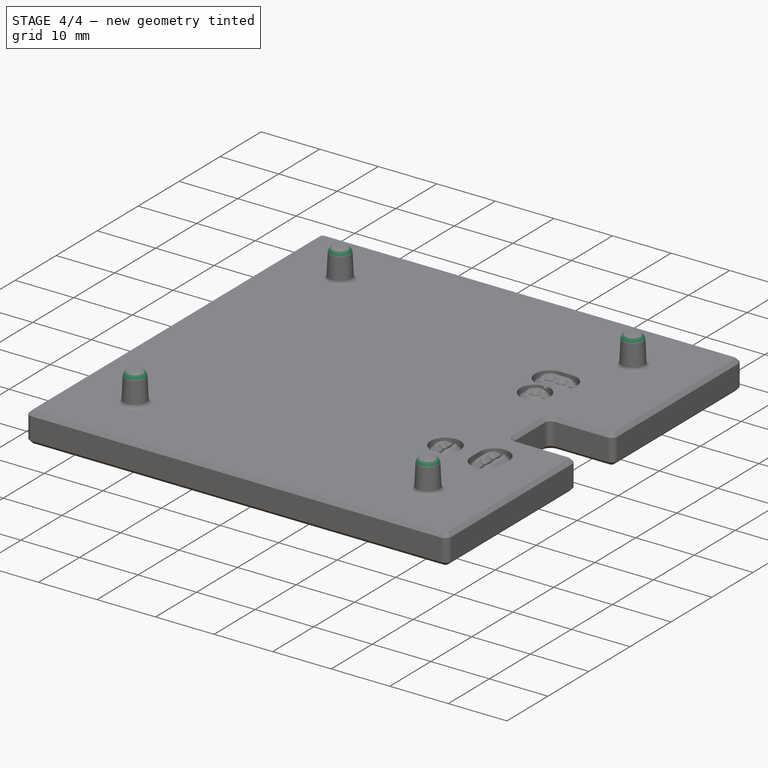
[diagram: stage 4 of 4 — iso view after this stage's code; geometry added in this stage tinted green]
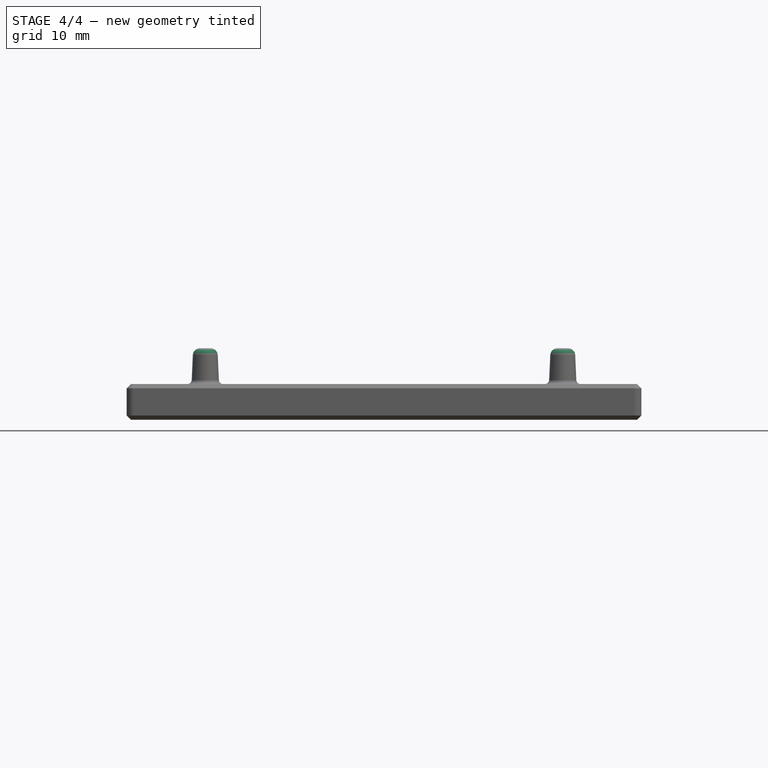
[diagram: stage 4 of 4 — front view after this stage's code; geometry added in this stage tinted green]
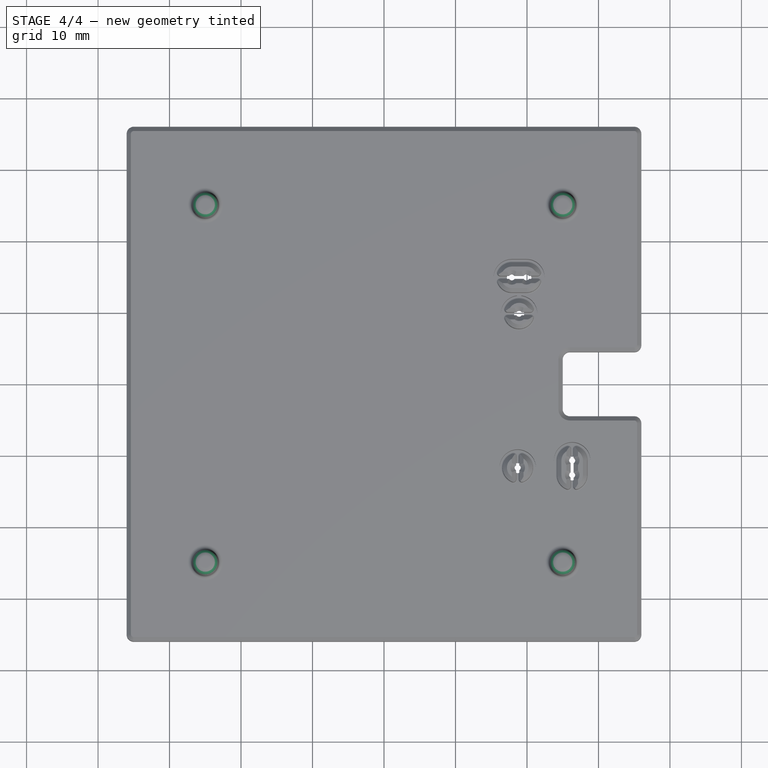
[diagram: stage 4 of 4 — top view after this stage's code; geometry added in this stage tinted green]
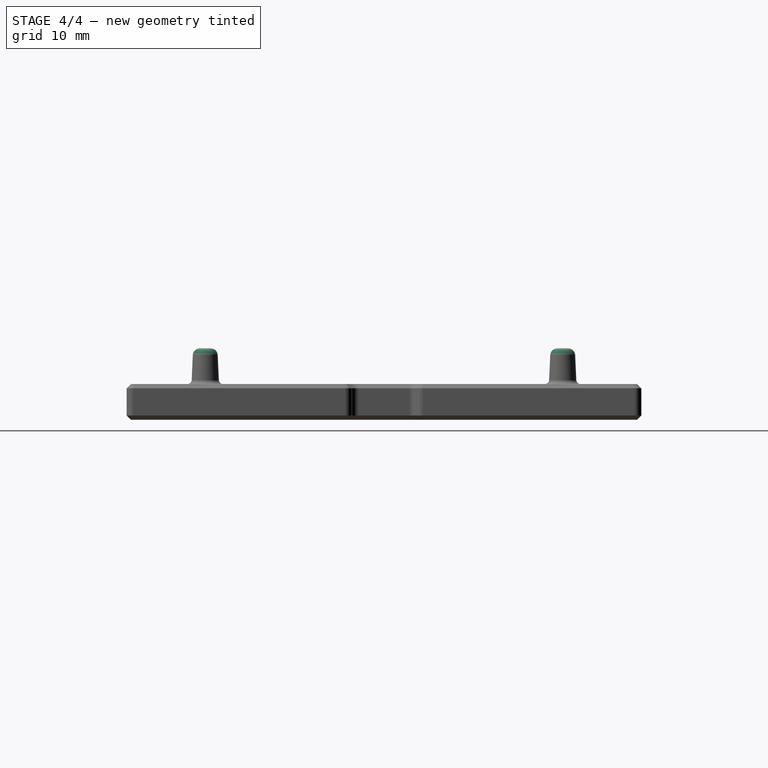
[diagram: stage 4 of 4 — right view after this stage's code; geometry added in this stage tinted green]
FEATURE [PartDesign::Fillet] Fillet001
  Base = -> Pad001 [Edge156,Edge164,Edge151,Edge150]
  BaseFeature = -> Pad001
  Radius = 0.6
  Refine = true
  SupportTransform = false
  Suppressed = false
  UseAllEdges = false
FEATURE [PartDesign::Chamfer] Chamfer002
  Angle = 45
  Base = -> Fillet001 [Edge192,Edge97,Edge188,Edge190]
  BaseFeature = -> Fillet001
  ChamferType = 1
  FlipDirection = false
  Refine = true
  Size = 4.39
  Size2 = 0.2
  SupportTransform = false
  Suppressed = false
  UseAllEdges = false
  expr: Size = <<Pad001>>.Length - <<Fillet001>>.Radius - 0.01 mm
FEATURE [PartDesign::Fillet] Fillet002
  Base = -> Chamfer002 [Edge5,Edge377,Edge379,Edge381]
  BaseFeature = -> Chamfer002
  Radius = 1
  Refine = true
  SupportTransform = false
  Suppressed = false
  UseAllEdges = false
FEATURE [PartDesign::Body] Body
  AllowCompound = false
  Group = -> [Sketch001,Sketch,Pad,Fillet,Chamfer003,Sketch002,Pocket,Chamfer001,Sketch003,Pocket001,Sketch004,Chamfer004,Fillet003,Fillet004,Pad001,Fillet001,Chamfer002,Fillet002]
  Origin = -> Origin
  Tip = -> Fillet002
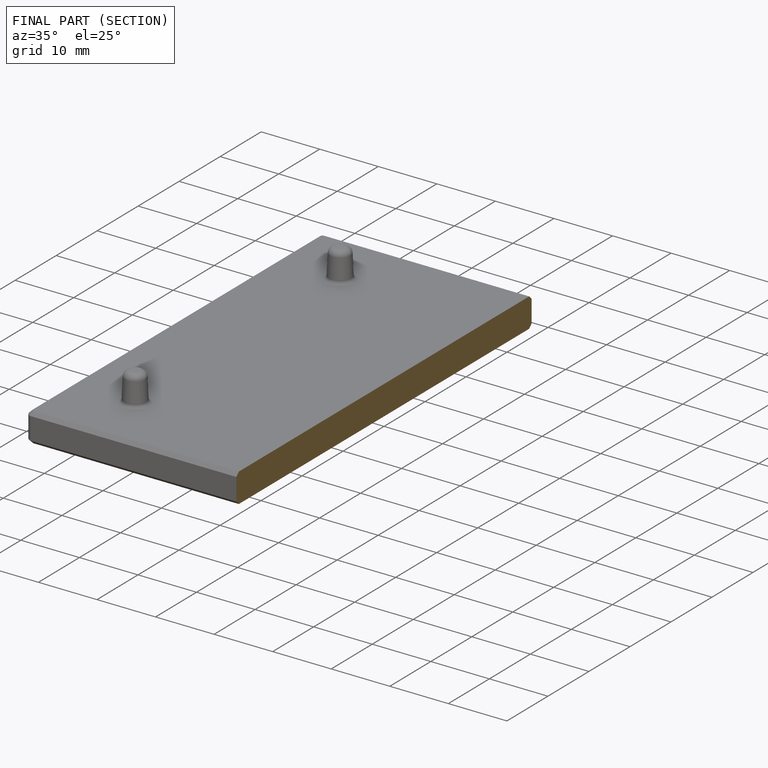
[diagram: finished part — half-section view (interior)]
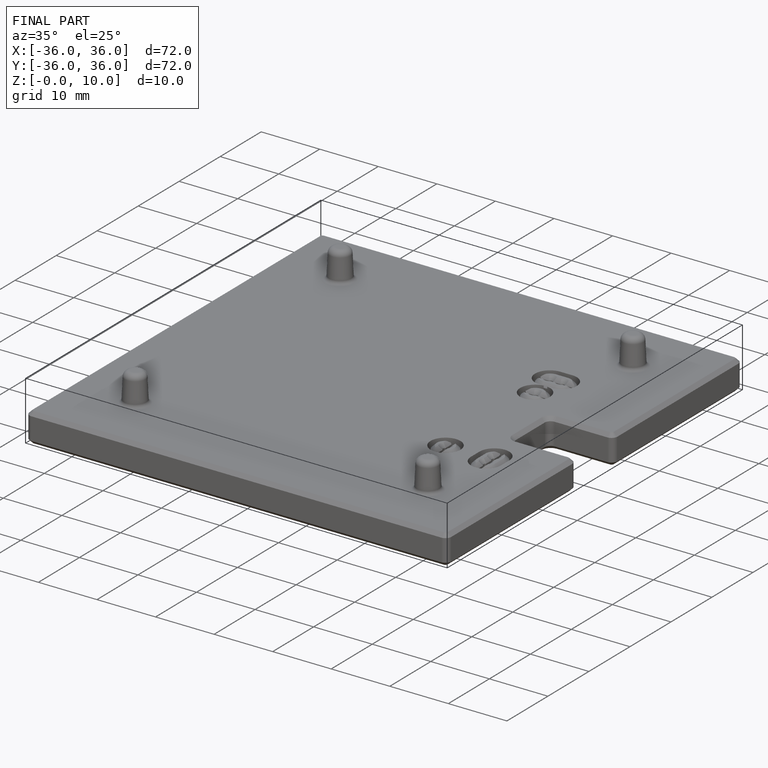
[diagram: finished part — iso view with bounding-box wireframe]
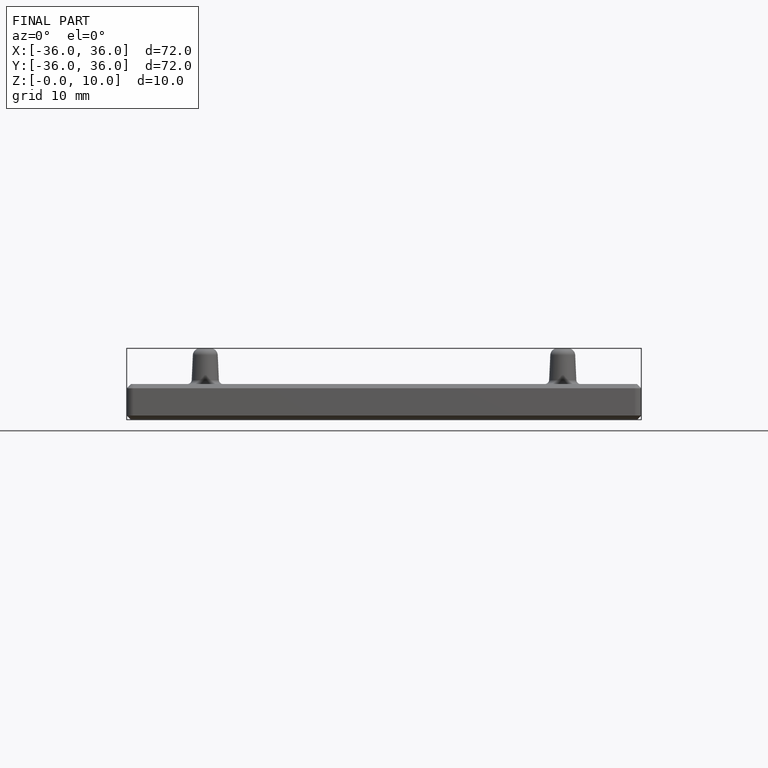
[diagram: finished part — front view with bounding-box wireframe]
